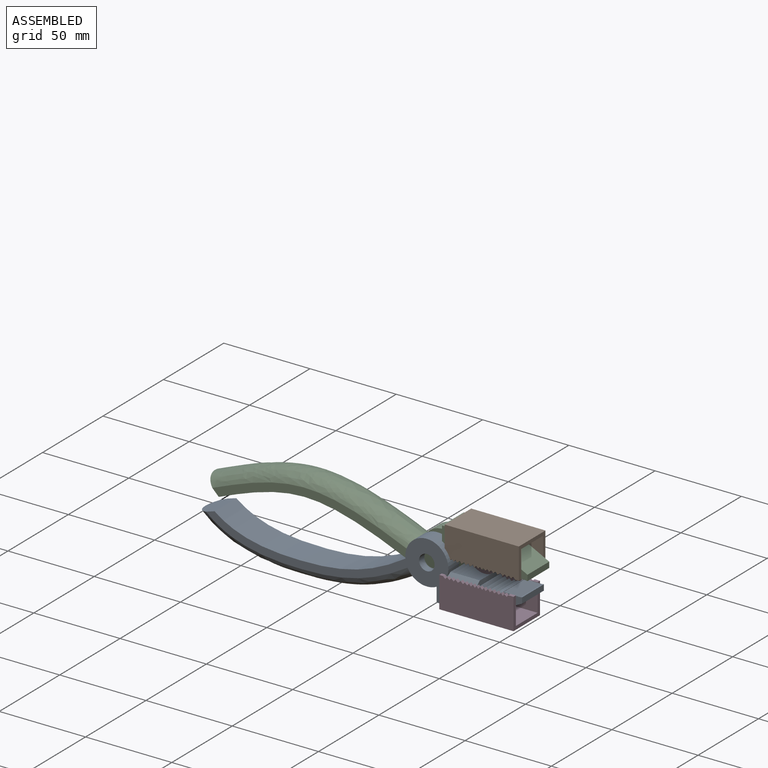
[diagram: assembled view]
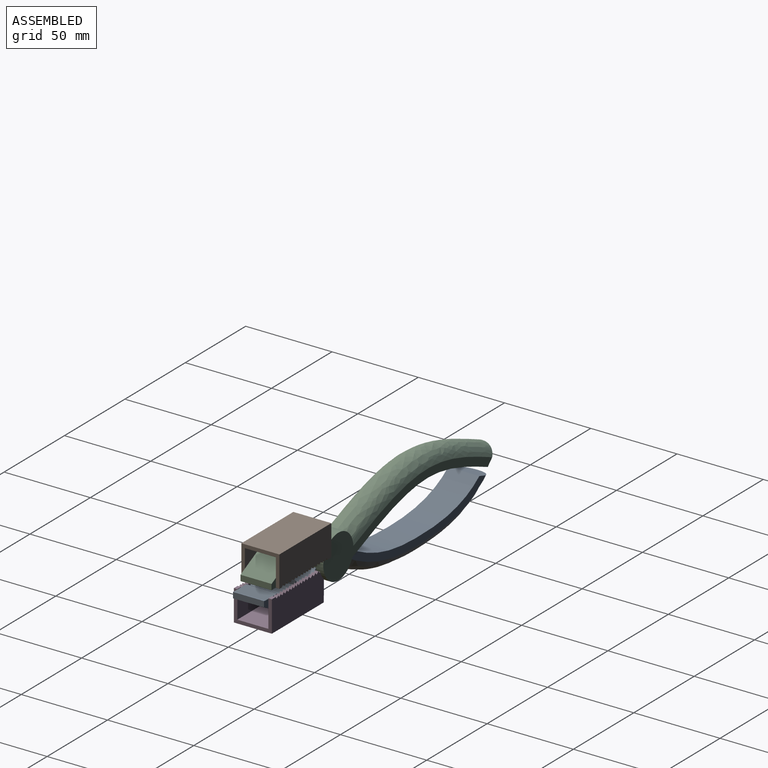
[diagram: assembled view, second angle]
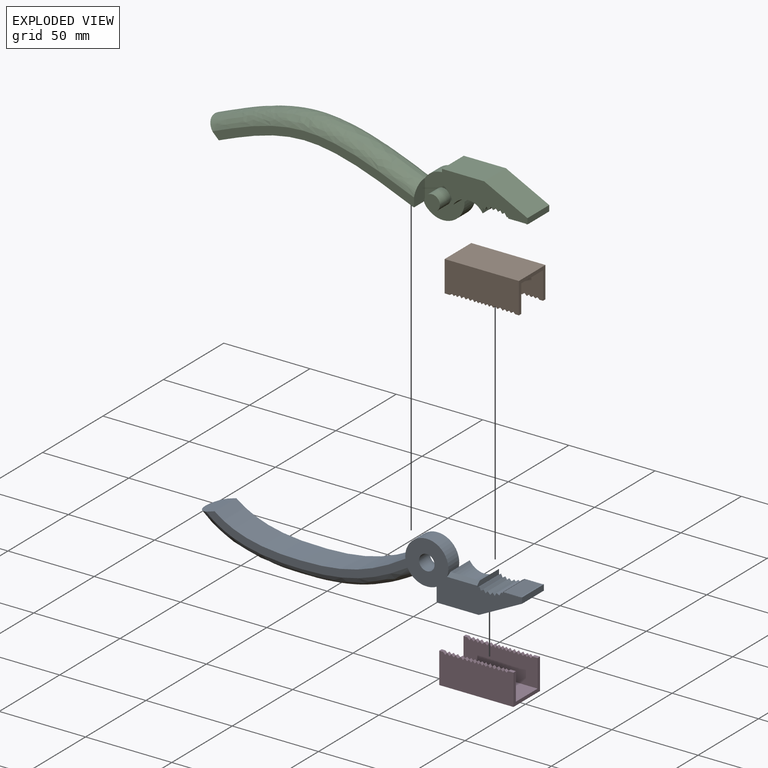
[diagram: exploded view]
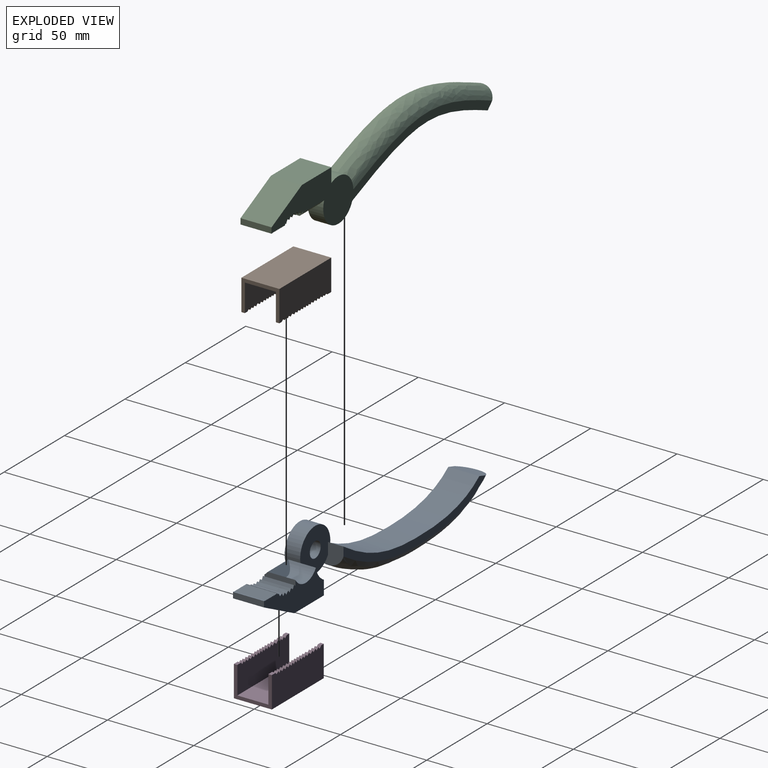
[diagram: exploded view, second angle]
ASSEMBLY  parts=4 mates=3
PART A: 66 faces, bbox 194.5x18.7x45.5 mm
  f0: cylinder r=12.5mm len=25mm, axis (0,1,0), area 387.9mm2, adj f2,f4,f7,f63,f64
  f1: plane 17.42x12mm, normal (1,0,0), area 123.6mm2, adj f2,f5,f6,f7,f8
  f2: bspline ~112.49x18.52mm, area 2117.5mm2, adj f0,f1,f3,f4,f5,f7
  f3: plane 18x11.47mm, normal (-0.29,0,0.96), area 184mm2, adj f2,f4,f5,f6
  f4: plane 183.95x36.03mm, normal (0,-1,0), area 1504mm2, adj f0,f2,f3,f6,f8,f9,f11,f12
  f5: plane 118.18x23.52mm, normal (0,1,0), area 543.2mm2, adj f1,f2,f3,f6
  f6: bspline ~128.1x27.09mm, area 2942.9mm2, adj f1,f3,f4,f5,f8
  f7: plane 25.01x25.01mm, normal (0,1,0), area 419.5mm2, adj f0,f1,f2,f8,f9,f10
  f8: cylinder r=12.5mm len=16.85mm, axis (0,1,0), area 166.1mm2, adj f1,f4,f6,f7,f60
  f9: cylinder r=4.5mm len=9mm, axis (0,1,0), area 254.5mm2, adj f4,f7
  f10: cylinder r=12.5mm len=9mm, axis (0,1,0), area 102.4mm2, adj f7,f59,f60,f64
  f11: plane 18x2.94mm, normal (1,0,0), area 50.9mm2, adj f4,f12,f59,f63,f64
  f12: plane 18x1.25mm, normal (-0.53,0,0.85), area 26.4mm2, adj f4,f11,f13,f59
  f13: plane 18x1.84mm, normal (0.91,0,0.41), area 36.3mm2, adj f4,f12,f14,f59
  f14: plane 18x1.65mm, normal (-0.54,0,0.84), area 35.3mm2, adj f4,f13,f15,f59
  f15: plane 18x1.71mm, normal (0.84,0,0.54), area 36.7mm2, adj f4,f14,f16,f59
  f16: plane 18x1.38mm, normal (-0.75,0,0.66), area 33mm2, adj f4,f15,f17,f59
  f17: plane 18x1.5mm, normal (0.71,0,0.7), area 38mm2, adj f4,f16,f18,f59
  f18: plane 18x1.57mm, normal (-0.76,0,0.65), area 37.4mm2, adj f4,f17,f19,f59
  f19: plane 18x1.39mm, normal (0.75,0,0.66), area 33.5mm2, adj f4,f18,f20,f59
  f20: plane 18x1.85mm, normal (-0.86,0,0.51), area 38.7mm2, adj f4,f19,f21,f59
  f21: plane 18x1.56mm, normal (0.51,0,0.86), area 32.8mm2, adj f4,f20,f22,f59
  f22: plane 18x1.99mm, normal (-0.86,0,0.51), area 41.6mm2, adj f4,f21,f23,f59
  f23: plane 18x0.63mm, normal (0.42,0,0.91), area 12.6mm2, adj f4,f22,f24,f59
  f24: plane 18x0.86mm, normal (-0.91,0,0.42), area 17.1mm2, adj f4,f23,f25,f59
  f25: plane 18x0.33mm, normal (0.99,0,0.17), area 6mm2, adj f4,f24,f26,f59
  f26: plane 18x0.33mm, normal (-0.73,0,0.69), area 8.2mm2, adj f4,f25,f27,f59
  f27: plane 18x0.35mm, normal (0.69,0,0.73), area 8.6mm2, adj f4,f26,f28,f59
  f28: plane 18x0.33mm, normal (-0.73,0,0.69), area 8.2mm2, adj f4,f27,f29,f59
  f29: plane 18x0.35mm, normal (0.69,0,0.73), area 8.6mm2, adj f4,f28,f30,f59
  f30: plane 18x0.33mm, normal (-0.73,0,0.69), area 8.2mm2, adj f4,f29,f31,f59
  f31: plane 18x0.35mm, normal (0.69,0,0.73), area 8.6mm2, adj f4,f30,f32,f59
  f32: plane 18x0.33mm, normal (-0.73,0,0.69), area 8.2mm2, adj f4,f31,f33,f59
  f33: plane 18x0.35mm, normal (0.69,0,0.73), area 8.6mm2, adj f4,f32,f34,f59
  f34: plane 18x0.33mm, normal (-0.73,0,0.69), area 8.2mm2, adj f4,f33,f35,f59
  f35: plane 18x0.35mm, normal (0.69,0,0.73), area 8.6mm2, adj f4,f34,f36,f59
  f36: plane 18x0.33mm, normal (-0.73,0,0.69), area 8.2mm2, adj f4,f35,f37,f59
  f37: plane 18x0.35mm, normal (0.69,0,0.73), area 8.6mm2, adj f4,f36,f38,f59
  f38: plane 18x0.33mm, normal (-0.73,0,0.69), area 8.2mm2, adj f4,f37,f39,f59
  f39: plane 18x0.35mm, normal (0.69,0,0.73), area 8.6mm2, adj f4,f38,f40,f59
  f40: plane 18x0.33mm, normal (-0.73,0,0.69), area 8.2mm2, adj f4,f39,f41,f59
  f41: plane 18x0.35mm, normal (0.69,0,0.73), area 8.6mm2, adj f4,f40,f42,f59
  f42: plane 18x0.33mm, normal (-0.73,0,0.69), area 8.2mm2, adj f4,f41,f43,f59
  f43: plane 18x0.35mm, normal (0.69,0,0.73), area 8.6mm2, adj f4,f42,f44,f59
  f44: plane 18x0.33mm, normal (-0.73,0,0.69), area 8.2mm2, adj f4,f43,f45,f59
  f45: plane 18x0.35mm, normal (0.69,0,0.73), area 8.6mm2, adj f4,f44,f46,f59
  f46: plane 18x0.33mm, normal (-0.73,0,0.69), area 8.2mm2, adj f4,f45,f47,f59
  f47: plane 18x0.35mm, normal (0.69,0,0.73), area 8.6mm2, adj f4,f46,f48,f59
  f48: plane 18x0.33mm, normal (-0.73,0,0.69), area 8.2mm2, adj f4,f47,f49,f59
  f49: plane 18x0.35mm, normal (0.69,0,0.73), area 8.6mm2, adj f4,f48,f50,f59
  f50: plane 18x0.33mm, normal (-0.73,0,0.69), area 8.2mm2, adj f4,f49,f51,f59
  f51: plane 18x0.35mm, normal (0.69,0,0.73), area 8.6mm2, adj f4,f50,f52,f59
  f52: plane 18x0.33mm, normal (-0.73,0,0.69), area 8.2mm2, adj f4,f51,f53,f59
  f53: plane 18x0.35mm, normal (0.69,0,0.73), area 8.6mm2, adj f4,f52,f54,f59
  f54: plane 18x0.33mm, normal (-0.73,0,0.69), area 8.2mm2, adj f4,f53,f55,f59
  f55: plane 18x0.35mm, normal (0.69,0,0.73), area 8.6mm2, adj f4,f54,f56,f59
  f56: plane 18x0.33mm, normal (-0.73,0,0.69), area 8.2mm2, adj f4,f55,f57,f59
  f57: plane 18x0.73mm, normal (0,0,1), area 13.1mm2, adj f4,f56,f58,f59
  f58: plane 18x3.33mm, normal (1,0,0), area 59.9mm2, adj f4,f57,f59,f61
  f59: plane 49.55x17.03mm, normal (0,1,0), area 526.1mm2, adj f10,f11,f12,f13,f14,f15,f16,f17
  f60: plane 18x8.23mm, normal (-1,0,0), area 148.2mm2, adj f4,f8,f10,f59,f62
  f61: plane 25.1x18mm, normal (0.45,0,-0.89), area 505.5mm2, adj f4,f58,f59,f62
  f62: plane 24.44x18mm, normal (0,0,-1), area 440mm2, adj f4,f59,f60,f61
  f63: plane 17.54x2.02mm, normal (0,-0.71,0.71), area 48.7mm2, adj f0,f4,f11,f65
  f64: cylinder r=9.96mm len=16.96mm, axis (0,1,0), area 261.7mm2, adj f0,f10,f11,f59,f65
  f65: plane 16.96x4.73mm, normal (0,0.71,0.71), area 80.2mm2, adj f63,f64
PART B: 76 faces, bbox 43x22x18 mm
  f0: plane 3.11x2mm, normal (0,0,-1), area 6.2mm2, adj f2,f5,f10,f44
  f1: plane 2.12x2mm, normal (0,0,-1), area 4.2mm2, adj f2,f5,f9,f45
  f2: plane 43x18mm, normal (0,1,0), area 751.3mm2, adj f0,f1,f7,f9,f10,f44,f45,f46
  f3: plane 3.11x2mm, normal (0,0,-1), area 6.2mm2, adj f6,f8,f10,f43
  f4: plane 2.12x2mm, normal (0,0,-1), area 4.2mm2, adj f6,f8,f9,f42
  f5: plane 43x16mm, normal (0,-1,0), area 665.3mm2, adj f0,f1,f9,f10,f11,f44,f45,f46
  f6: plane 43x16mm, normal (0,1,0), area 665.3mm2, adj f3,f4,f9,f10,f11,f12,f13,f14
  f7: plane 43x22mm, normal (0,0,1), area 946mm2, adj f2,f8,f9,f10
  f8: plane 43x18mm, normal (0,-1,0), area 751.3mm2, adj f3,f4,f7,f9,f10,f12,f13,f14
  f9: plane 22x18mm, normal (1,0,0), area 108mm2, adj f1,f2,f4,f5,f6,f7,f8,f11
  f10: plane 22x18mm, normal (-1,0,0), area 108mm2, adj f0,f2,f3,f5,f6,f7,f8,f11
  f11: plane 43x18mm, normal (0,0,-1), area 774mm2, adj f5,f6,f9,f10
  f12: plane 2x1.31mm, normal (-0.64,0,-0.77), area 3.4mm2, adj f6,f8,f13,f43
  f13: plane 2x1.16mm, normal (0.77,0,-0.64), area 3mm2, adj f6,f8,f12,f14
  f14: plane 2x1.16mm, normal (-0.79,0,-0.61), area 3mm2, adj f6,f8,f13,f15
  f15: plane 2x1.56mm, normal (0.61,0,-0.79), area 3.9mm2, adj f6,f8,f14,f16
  f16: plane 2x1.21mm, normal (-0.79,0,-0.61), area 3.1mm2, adj f6,f8,f15,f17
  f17: plane 2x1.56mm, normal (0.61,0,-0.79), area 3.9mm2, adj f6,f8,f16,f18
  f18: plane 2x1.21mm, normal (-0.79,0,-0.61), area 3.1mm2, adj f6,f8,f17,f19
  f19: plane 2x1.56mm, normal (0.61,0,-0.79), area 3.9mm2, adj f6,f8,f18,f20
  f20: plane 2x1.21mm, normal (-0.79,0,-0.61), area 3.1mm2, adj f6,f8,f19,f21
  f21: plane 2x1.56mm, normal (0.61,0,-0.79), area 3.9mm2, adj f6,f8,f20,f22
  f22: plane 2x1.21mm, normal (-0.79,0,-0.61), area 3.1mm2, adj f6,f8,f21,f23
  f23: plane 2x1.21mm, normal (0.76,0,-0.65), area 3.2mm2, adj f6,f8,f22,f24
  f24: plane 2x1.21mm, normal (-0.73,0,-0.68), area 3.3mm2, adj f6,f8,f23,f25
  f25: plane 2x1.21mm, normal (0.73,0,-0.68), area 3.3mm2, adj f6,f8,f24,f26
  f26: plane 2x1.21mm, normal (-0.82,0,-0.58), area 3mm2, adj f6,f8,f25,f27
  f27: plane 2x1.21mm, normal (0.73,0,-0.68), area 3.3mm2, adj f6,f8,f26,f28
  f28: plane 2x1.21mm, normal (-0.75,0,-0.66), area 3.2mm2, adj f6,f8,f27,f29
  f29: plane 2x1.21mm, normal (0.73,0,-0.68), area 3.3mm2, adj f6,f8,f28,f30
  f30: plane 2x1.21mm, normal (-0.75,0,-0.66), area 3.2mm2, adj f6,f8,f29,f31
  f31: plane 2x1.21mm, normal (0.73,0,-0.68), area 3.3mm2, adj f6,f8,f30,f32
  f32: plane 2x1.3mm, normal (-0.68,0,-0.73), area 3.6mm2, adj f6,f8,f31,f33
  f33: plane 2x1.21mm, normal (0.73,0,-0.68), area 3.3mm2, adj f6,f8,f32,f34
  f34: plane 2x1.3mm, normal (-0.68,0,-0.73), area 3.6mm2, adj f6,f8,f33,f35
  f35: plane 2x1.68mm, normal (0.58,0,-0.81), area 4.2mm2, adj f6,f8,f34,f36
  f36: plane 2x1.3mm, normal (-0.68,0,-0.73), area 3.6mm2, adj f6,f8,f35,f37
  f37: plane 2x1.21mm, normal (0.73,0,-0.68), area 3.3mm2, adj f6,f8,f36,f38
  f38: plane 2x1.3mm, normal (-0.68,0,-0.73), area 3.6mm2, adj f6,f8,f37,f39
  f39: plane 2x1.21mm, normal (0.73,0,-0.68), area 3.3mm2, adj f6,f8,f38,f40
  f40: plane 2x1.3mm, normal (-0.68,0,-0.73), area 3.6mm2, adj f6,f8,f39,f41
  f41: plane 2x1.21mm, normal (0.73,0,-0.68), area 3.3mm2, adj f6,f8,f40,f42
  f42: plane 2x1.3mm, normal (-0.68,0,-0.73), area 3.6mm2, adj f4,f6,f8,f41
  f43: plane 2x1.08mm, normal (0.77,0,-0.64), area 2.8mm2, adj f3,f6,f8,f12
  f44: plane 2x1.08mm, normal (0.77,0,-0.64), area 2.8mm2, adj f0,f2,f5,f75
  f45: plane 2x1.3mm, normal (-0.68,0,-0.73), area 3.6mm2, adj f1,f2,f5,f46
  f46: plane 2x1.21mm, normal (0.73,0,-0.68), area 3.3mm2, adj f2,f5,f45,f47
  f47: plane 2x1.3mm, normal (-0.68,0,-0.73), area 3.6mm2, adj f2,f5,f46,f48
  f48: plane 2x1.21mm, normal (0.73,0,-0.68), area 3.3mm2, adj f2,f5,f47,f49
  f49: plane 2x1.3mm, normal (-0.68,0,-0.73), area 3.6mm2, adj f2,f5,f48,f50
  f50: plane 2x1.21mm, normal (0.73,0,-0.68), area 3.3mm2, adj f2,f5,f49,f51
  f51: plane 2x1.3mm, normal (-0.68,0,-0.73), area 3.6mm2, adj f2,f5,f50,f52
  f52: plane 2x1.68mm, normal (0.58,0,-0.81), area 4.2mm2, adj f2,f5,f51,f53
  f53: plane 2x1.3mm, normal (-0.68,0,-0.73), area 3.6mm2, adj f2,f5,f52,f54
  f54: plane 2x1.21mm, normal (0.73,0,-0.68), area 3.3mm2, adj f2,f5,f53,f55
  f55: plane 2x1.3mm, normal (-0.68,0,-0.73), area 3.6mm2, adj f2,f5,f54,f56
  f56: plane 2x1.21mm, normal (0.73,0,-0.68), area 3.3mm2, adj f2,f5,f55,f57
  f57: plane 2x1.21mm, normal (-0.75,0,-0.66), area 3.2mm2, adj f2,f5,f56,f58
  f58: plane 2x1.21mm, normal (0.73,0,-0.68), area 3.3mm2, adj f2,f5,f57,f59
  f59: plane 2x1.21mm, normal (-0.75,0,-0.66), area 3.2mm2, adj f2,f5,f58,f60
  f60: plane 2x1.21mm, normal (0.73,0,-0.68), area 3.3mm2, adj f2,f5,f59,f61
  f61: plane 2x1.21mm, normal (-0.82,0,-0.58), area 3mm2, adj f2,f5,f60,f62
  f62: plane 2x1.21mm, normal (0.73,0,-0.68), area 3.3mm2, adj f2,f5,f61,f63
  f63: plane 2x1.21mm, normal (-0.73,0,-0.68), area 3.3mm2, adj f2,f5,f62,f64
  f64: plane 2x1.21mm, normal (0.76,0,-0.65), area 3.2mm2, adj f2,f5,f63,f65
  f65: plane 2x1.21mm, normal (-0.79,0,-0.61), area 3.1mm2, adj f2,f5,f64,f66
  f66: plane 2x1.56mm, normal (0.61,0,-0.79), area 3.9mm2, adj f2,f5,f65,f67
  f67: plane 2x1.21mm, normal (-0.79,0,-0.61), area 3.1mm2, adj f2,f5,f66,f68
  f68: plane 2x1.56mm, normal (0.61,0,-0.79), area 3.9mm2, adj f2,f5,f67,f69
  f69: plane 2x1.21mm, normal (-0.79,0,-0.61), area 3.1mm2, adj f2,f5,f68,f70
  f70: plane 2x1.56mm, normal (0.61,0,-0.79), area 3.9mm2, adj f2,f5,f69,f71
  f71: plane 2x1.21mm, normal (-0.79,0,-0.61), area 3.1mm2, adj f2,f5,f70,f72
  f72: plane 2x1.56mm, normal (0.61,0,-0.79), area 3.9mm2, adj f2,f5,f71,f73
  f73: plane 2x1.16mm, normal (-0.79,0,-0.61), area 3mm2, adj f2,f5,f72,f74
  f74: plane 2x1.16mm, normal (0.77,0,-0.64), area 3mm2, adj f2,f5,f73,f75
  f75: plane 2x1.31mm, normal (-0.64,0,-0.77), area 3.4mm2, adj f2,f5,f44,f74
PART C: 67 faces, bbox 188.8x19.4x37.8 mm
  f0: cylinder r=12.5mm len=18.21mm, axis (0,-1,0), area 194.6mm2, adj f2,f5,f8,f62
  f1: bspline ~113.14x18.32mm, area 2117.9mm2, adj f3,f4,f5,f6,f7,f8
  f2: bspline ~121.48x23.91mm, area 2925.8mm2, adj f0,f3,f4,f5,f6
  f3: plane 13.4x10.4mm, normal (1,0,0), area 92mm2, adj f1,f2,f6,f8
  f4: plane 19.4x9.89mm, normal (-0.71,0,-0.71), area 184mm2, adj f1,f2,f5,f6
  f5: plane 183.2x32.37mm, normal (0,1,0), area 1608.4mm2, adj f0,f1,f2,f4,f7,f12,f13,f14
  f6: plane 117.31x23.54mm, normal (0,-1,0), area 576.4mm2, adj f1,f2,f3,f4
  f7: cylinder r=12.5mm len=24.03mm, axis (0,-1,0), area 331.8mm2, adj f1,f5,f8,f64,f65
  f8: plane 25x24.03mm, normal (0,-1,0), area 410mm2, adj f0,f1,f3,f7,f10,f63
  f9: plane 9x9mm, normal (0,-1,0), area 63.6mm2, adj f10
  f10: cylinder r=4.5mm len=9mm, axis (0,1,0), area 254.5mm2, adj f8,f9
  f11: plane 49.54x17.03mm, normal (0,-1,0), area 526.2mm2, adj f12,f13,f14,f15,f16,f17,f18,f19
  f12: plane 18x2.94mm, normal (1,0,0), area 50.9mm2, adj f5,f11,f13,f64,f65
  f13: plane 18x1.25mm, normal (-0.53,0,-0.85), area 26.4mm2, adj f5,f11,f12,f14
  f14: plane 18x1.84mm, normal (0.91,0,-0.41), area 36.3mm2, adj f5,f11,f13,f15
  f15: plane 18x1.65mm, normal (-0.54,0,-0.84), area 35.3mm2, adj f5,f11,f14,f16
  f16: plane 18x1.71mm, normal (0.84,0,-0.54), area 36.7mm2, adj f5,f11,f15,f17
  f17: plane 18x1.38mm, normal (-0.75,0,-0.66), area 33mm2, adj f5,f11,f16,f18
  f18: plane 18x1.5mm, normal (0.71,0,-0.7), area 38mm2, adj f5,f11,f17,f19
  f19: plane 18x1.57mm, normal (-0.76,0,-0.65), area 37.4mm2, adj f5,f11,f18,f20
  f20: plane 18x1.39mm, normal (0.75,0,-0.66), area 33.5mm2, adj f5,f11,f19,f21
  f21: plane 18x1.85mm, normal (-0.86,0,-0.51), area 38.7mm2, adj f5,f11,f20,f22
  f22: plane 18x1.56mm, normal (0.51,0,-0.86), area 32.8mm2, adj f5,f11,f21,f23
  f23: plane 18x1.99mm, normal (-0.86,0,-0.51), area 41.6mm2, adj f5,f11,f22,f24
  f24: plane 18x0.63mm, normal (0.42,0,-0.91), area 12.6mm2, adj f5,f11,f23,f25
  f25: plane 18x0.86mm, normal (-0.91,0,-0.42), area 17.1mm2, adj f5,f11,f24,f26
  f26: plane 18x0.33mm, normal (0.99,0,-0.17), area 6mm2, adj f5,f11,f25,f27
  f27: plane 18x0.33mm, normal (-0.73,0,-0.69), area 8.2mm2, adj f5,f11,f26,f28
  f28: plane 18x0.35mm, normal (0.69,0,-0.73), area 8.6mm2, adj f5,f11,f27,f29
  f29: plane 18x0.33mm, normal (-0.73,0,-0.69), area 8.2mm2, adj f5,f11,f28,f30
  f30: plane 18x0.35mm, normal (0.69,0,-0.73), area 8.6mm2, adj f5,f11,f29,f31
  f31: plane 18x0.33mm, normal (-0.73,0,-0.69), area 8.2mm2, adj f5,f11,f30,f32
  f32: plane 18x0.35mm, normal (0.69,0,-0.73), area 8.6mm2, adj f5,f11,f31,f33
  f33: plane 18x0.33mm, normal (-0.73,0,-0.69), area 8.2mm2, adj f5,f11,f32,f34
  f34: plane 18x0.35mm, normal (0.69,0,-0.73), area 8.6mm2, adj f5,f11,f33,f35
  f35: plane 18x0.33mm, normal (-0.73,0,-0.69), area 8.2mm2, adj f5,f11,f34,f36
  f36: plane 18x0.35mm, normal (0.69,0,-0.73), area 8.6mm2, adj f5,f11,f35,f37
  f37: plane 18x0.33mm, normal (-0.73,0,-0.69), area 8.2mm2, adj f5,f11,f36,f38
  f38: plane 18x0.35mm, normal (0.69,0,-0.73), area 8.6mm2, adj f5,f11,f37,f39
  f39: plane 18x0.33mm, normal (-0.73,0,-0.69), area 8.2mm2, adj f5,f11,f38,f40
  f40: plane 18x0.35mm, normal (0.69,0,-0.73), area 8.6mm2, adj f5,f11,f39,f41
  f41: plane 18x0.33mm, normal (-0.73,0,-0.69), area 8.2mm2, adj f5,f11,f40,f42
  f42: plane 18x0.35mm, normal (0.69,0,-0.73), area 8.6mm2, adj f5,f11,f41,f43
  f43: plane 18x0.33mm, normal (-0.73,0,-0.69), area 8.2mm2, adj f5,f11,f42,f44
  f44: plane 18x0.35mm, normal (0.69,0,-0.73), area 8.6mm2, adj f5,f11,f43,f45
  f45: plane 18x0.33mm, normal (-0.73,0,-0.69), area 8.2mm2, adj f5,f11,f44,f46
  f46: plane 18x0.35mm, normal (0.69,0,-0.73), area 8.6mm2, adj f5,f11,f45,f47
  f47: plane 18x0.33mm, normal (-0.73,0,-0.69), area 8.2mm2, adj f5,f11,f46,f48
  f48: plane 18x0.35mm, normal (0.69,0,-0.73), area 8.6mm2, adj f5,f11,f47,f49
  f49: plane 18x0.33mm, normal (-0.73,0,-0.69), area 8.2mm2, adj f5,f11,f48,f50
  f50: plane 18x0.35mm, normal (0.69,0,-0.73), area 8.6mm2, adj f5,f11,f49,f51
  f51: plane 18x0.33mm, normal (-0.73,0,-0.69), area 8.2mm2, adj f5,f11,f50,f52
  f52: plane 18x0.35mm, normal (0.69,0,-0.73), area 8.6mm2, adj f5,f11,f51,f53
  f53: plane 18x0.33mm, normal (-0.73,0,-0.69), area 8.2mm2, adj f5,f11,f52,f54
  f54: plane 18x0.35mm, normal (0.69,0,-0.73), area 8.6mm2, adj f5,f11,f53,f55
  f55: plane 18x0.33mm, normal (-0.73,0,-0.69), area 8.2mm2, adj f5,f11,f54,f56
  f56: plane 18x0.35mm, normal (0.69,0,-0.73), area 8.6mm2, adj f5,f11,f55,f57
  f57: plane 18x0.33mm, normal (-0.73,0,-0.69), area 8.2mm2, adj f5,f11,f56,f58
  f58: plane 18x0.73mm, normal (0,0,-1), area 13.1mm2, adj f5,f11,f57,f59
  f59: plane 18x3.33mm, normal (1,0,0), area 59.9mm2, adj f5,f11,f58,f60
  f60: plane 25.1x18mm, normal (0.45,0,0.89), area 505.5mm2, adj f5,f11,f59,f61
  f61: plane 24.44x18mm, normal (0,0,1), area 439.9mm2, adj f5,f11,f60,f62
  f62: plane 18x8.23mm, normal (-1,0,0), area 148.2mm2, adj f0,f5,f11,f61,f63
  f63: cylinder r=12.5mm len=9mm, axis (0,-1,0), area 102.2mm2, adj f8,f11,f62,f65
  f64: plane 17.57x2.02mm, normal (0,0.71,-0.71), area 48.8mm2, adj f5,f7,f12,f66
  f65: cylinder r=10mm len=17mm, axis (0,-1,0), area 262.2mm2, adj f7,f11,f12,f63,f66
  f66: plane 17x4.73mm, normal (0,-0.71,-0.71), area 80.4mm2, adj f64,f65
PART D: same geometry as B
PLACE A t=(38.67,-0.16,-2.36)mm
PLACE B t=(57.88,4.23,12.6)mm
PLACE C t=(38.67,4.23,-2.36)mm
PLACE D rot(axis=(0,-1,0),180deg) t=(100.83,-0.16,-12.1)mm
MATE fastened D.f11 <-> A.f62  axis (0,0,1) through (79.33,-0.16,-19.1)mm
MATE cylindrical A.f0 <-> C.f0  axis (0,1,0) through (49.19,-0.16,0.26)mm
MATE fastened B.f11 <-> C.f61  axis (0,0,-1) through (79.38,4.23,19.6)mm
